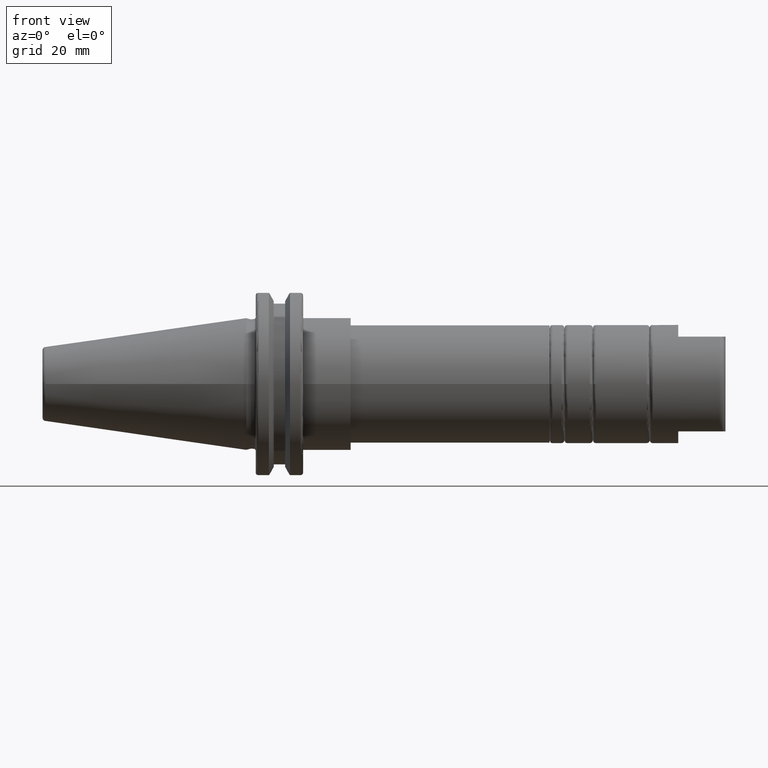
[diagram: clean part render]
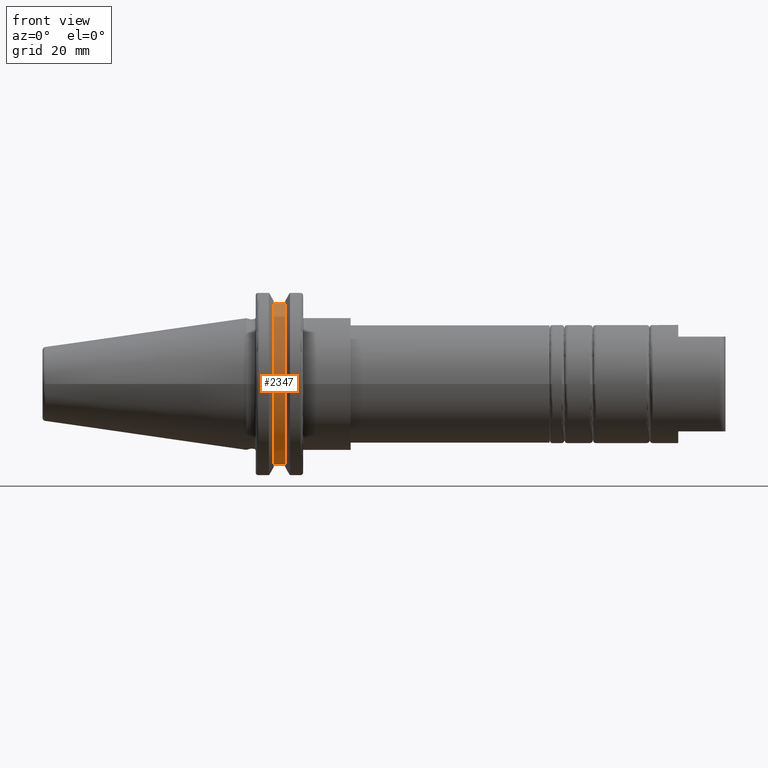
[diagram: same view with one face highlighted and labeled with its STEP entity id]
A machine part, front view. The second image highlights one B-rep face of the part: STEP entity #2347.
In plain terms, the highlighted cylindrical surface (partial cylindrical patch) has radius 28.15 mm, axis along (1, 0, 0).
Its self-contained STEP definition (entity closure, byte-faithful):
#616=CIRCLE('',#2701,28.15);
#618=CIRCLE('',#2705,28.15);
#721=CYLINDRICAL_SURFACE('',#2704,28.15);
#791=FACE_OUTER_BOUND('',#911,.T.);
#911=EDGE_LOOP('',(#1978,#1979,#1980,#1981));
#1025=LINE('',#3963,#1157);
#1030=LINE('',#3981,#1162);
#1157=VECTOR('',#3068,10.);
#1162=VECTOR('',#3075,10.);
#1310=VERTEX_POINT('',#3960);
#1311=VERTEX_POINT('',#3962);
#1316=VERTEX_POINT('',#3978);
#1317=VERTEX_POINT('',#3980);
#1509=EDGE_CURVE('',#1311,#1310,#1025,.T.);
#1516=EDGE_CURVE('',#1317,#1316,#1030,.T.);
#1574=EDGE_CURVE('',#1310,#1317,#616,.T.);
#1576=EDGE_CURVE('',#1311,#1316,#618,.T.);
#1978=ORIENTED_EDGE('',*,*,#1516,.T.);
#1979=ORIENTED_EDGE('',*,*,#1576,.F.);
#1980=ORIENTED_EDGE('',*,*,#1509,.T.);
#1981=ORIENTED_EDGE('',*,*,#1574,.T.);
#2347=ADVANCED_FACE('',(#791),#721,.T.);
#2701=AXIS2_PLACEMENT_3D('',#4155,#3193,#3194);
#2704=AXIS2_PLACEMENT_3D('',#4158,#3199,#3200);
#2705=AXIS2_PLACEMENT_3D('',#4159,#3201,#3202);
#3068=DIRECTION('',(-1.,0.,0.));
#3075=DIRECTION('',(1.,0.,0.));
#3193=DIRECTION('center_axis',(1.,0.,0.));
#3194=DIRECTION('ref_axis',(0.,0.,-1.));
#3199=DIRECTION('center_axis',(1.,0.,0.));
#3200=DIRECTION('ref_axis',(0.,-1.,-1.22464679914735E-16));
#3201=DIRECTION('center_axis',(1.,0.,0.));
#3202=DIRECTION('ref_axis',(0.,0.,-1.));
#3960=CARTESIAN_POINT('',(9.212,-8.19,26.932255754021));
#3962=CARTESIAN_POINT('',(13.042,-8.19,26.932255754021));
#3963=CARTESIAN_POINT('',(11.127,-8.19,26.932255754021));
#3978=CARTESIAN_POINT('',(13.042,-8.19,-26.932255754021));
#3980=CARTESIAN_POINT('',(9.212,-8.19,-26.932255754021));
#3981=CARTESIAN_POINT('',(11.127,-8.19,-26.932255754021));
#4155=CARTESIAN_POINT('Origin',(9.212,0.,0.));
#4158=CARTESIAN_POINT('Origin',(11.127,0.,0.));
#4159=CARTESIAN_POINT('Origin',(13.042,0.,0.));